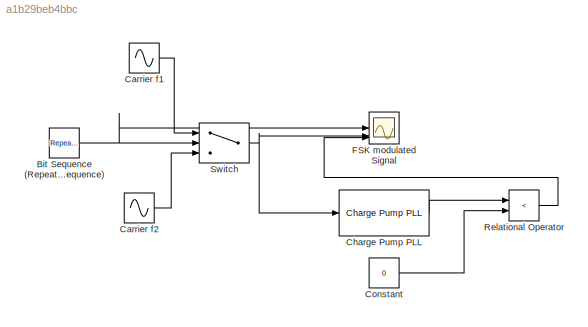
MODEL slx_a1b29beb4bbc
KIND model
CONFIG AbsTol = auto
CONFIG EnableMultiTasking = off
CONFIG FixedStep = auto
CONFIG MaxStep = 0.001
CONFIG MinStep = auto
CONFIG RelTol = 1e-3
CONFIG SampleTimeConstraint = Unconstrained
CONFIG SolverName = VariableStepAuto
CONFIG StartTime = 0.0
CONFIG StopTime = 10.0
BLOCK [Reference] Bit Sequence (Repeating Sequence)  REF=simulink/Sources/Repeating
Sequence
Stair
  SourceBlock = simulink/Sources/Repeating\nSequence\nStair
  SourceType = Repeating Sequence Stair
BLOCK [Sin] Carrier f1
  Frequency = 2*pi*4
  SampleTime = 0
BLOCK [Sin] Carrier f2
  Frequency = 2*pi*2
  SampleTime = 0
BLOCK [Reference] Charge Pump PLL  REF=commsynccomp2/Charge Pump
PLL
  SourceBlock = commsynccomp2/Charge Pump\nPLL
  SourceType = Charge Pump PLL
BLOCK [Constant] Constant
  Value = 0
BLOCK [Scope] FSK modulated Signal
  Floating = off
  NumInputPorts = 4
  ScopeSpecificationString = Simulink.scopes.TimeScopeBlockCfg('CurrentConfiguration', extmgr.ConfigurationSet(extmgr.Configuration('Core','General UI',true),extmgr.Configuration('Core','Source UI',true),extmgr.Configuration('Sources','WiredSimulink',true),extmgr.Configuration('Visuals','Time Domain',true,'SerializedDisplays',{struct('MinYLimReal','-0.125','MaxYLimReal','1.125','YLabelReal','','MinYLimMag','0.00000','MaxYLimM...<+3454ch>
BLOCK [RelationalOperator] Relational Operator
  InputSameDT = off
  Operator = <
  OutDataTypeStr = boolean
  RndMeth = Simplest
BLOCK [Switch] Switch
  Criteria = u2 > Threshold
  InputSameDT = off
  SaturateOnIntegerOverflow = off
NET Bit Sequence (Repeating Sequence):1 -> FSK modulated Signal:1, Switch:2
LINE Carrier f1:1 -> Switch:1
LINE Carrier f2:1 -> Switch:3
LINE Charge Pump PLL:1 -> Relational Operator:1
LINE Constant:1 -> Relational Operator:2
LINE Relational Operator:1 -> FSK modulated Signal:4
NET Switch:1 -> Charge Pump PLL:1, FSK modulated Signal:3
note: NET lines group one-source signal fan-out (src -> all destinations, sorted); 1:1 wires keep LINE
